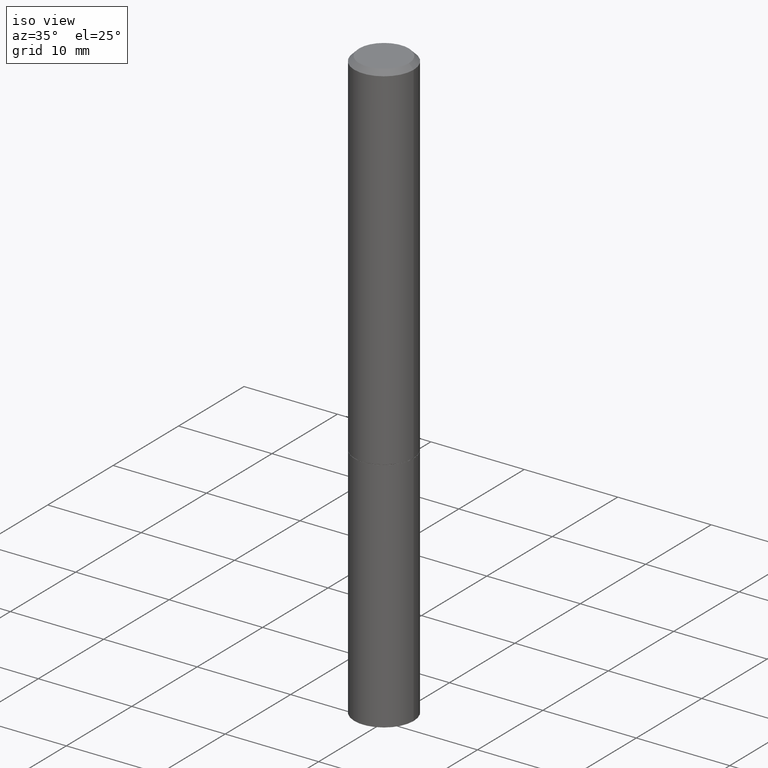
[diagram: clean part render]
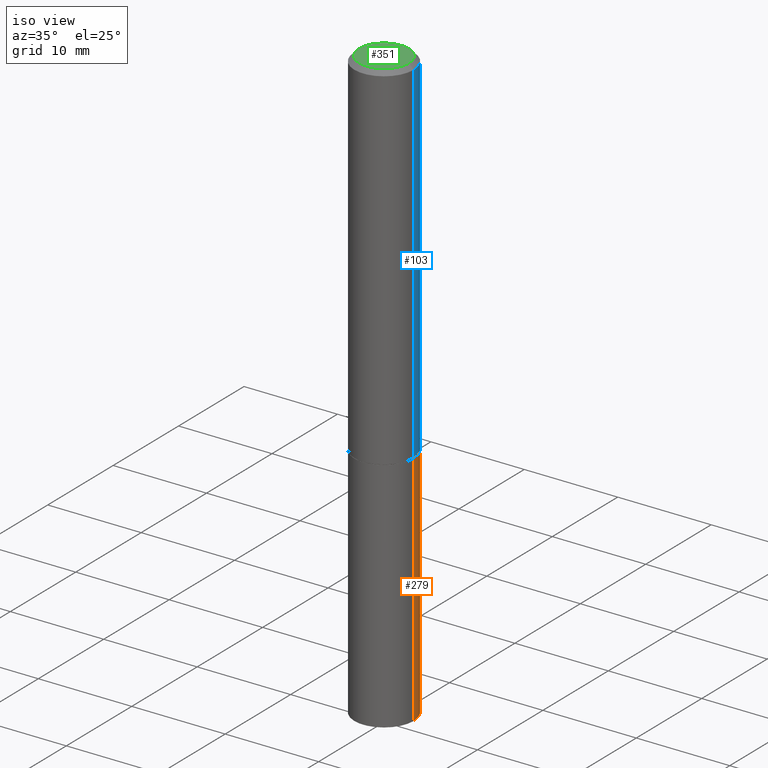
[diagram: same view with three faces highlighted in distinct colors, each labeled with its STEP entity id]
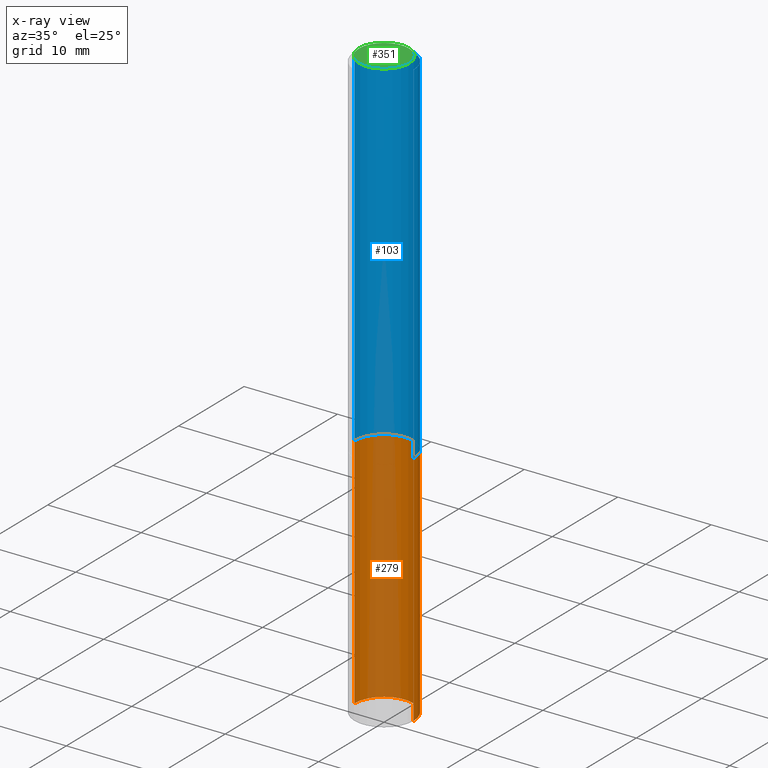
[diagram: x-ray of the same camera — body ghosted, the three highlighted faces saturated]
A machine part, iso view with three faces highlighted in distinct colors.
The next image is the same camera in x-ray (body ghosted, the three faces saturated) — at least one of them is partly hidden behind the body in this view.
Their STEP definitions:

[orange] entity #279 — the highlighted cylindrical surface (edge-blend (fillet) strip) has radius 3.175 mm, axis along (-0, 0, 1).
#7 = CYLINDRICAL_SURFACE ( 'NONE', #74, 0.1250000000000000000 ) ;
#9 = CARTESIAN_POINT ( 'NONE',  ( 6.113672015462842613E-29, -8.728703347107864943E-15, -2.500000000000000000 ) ) ;
#28 = CIRCLE ( 'NONE', #240, 0.1250000000000000000 ) ;
#32 = LINE ( 'NONE', #265, #310 ) ;
#36 = DIRECTION ( 'NONE',  ( 1.000000000000000000, -6.982962677686270655E-15, 0.000000000000000000 ) ) ;
#38 = DIRECTION ( 'NONE',  ( 1.000000000000000000, -6.982962677686262766E-15, 0.000000000000000000 ) ) ;
#40 = CARTESIAN_POINT ( 'NONE',  ( 0.1250000000000000000, -6.110092342975501516E-15, -1.500000000000000222 ) ) ;
#44 = EDGE_CURVE ( 'NONE', #332, #244, #285, .T. ) ;
#52 = CIRCLE ( 'NONE', #166, 0.1250000000000000000 ) ;
#54 = ORIENTED_EDGE ( 'NONE', *, *, #283, .F. ) ;
#66 = DIRECTION ( 'NONE',  ( 1.000000000000000000, -6.982962677686266711E-15, 4.876176775795935793E-29 ) ) ;
#73 = VERTEX_POINT ( 'NONE', #139 ) ;
#74 = AXIS2_PLACEMENT_3D ( 'NONE', #202, #319, #66 ) ;
#85 = VECTOR ( 'NONE', #254, 39.37007874015748143 ) ;
#124 = DIRECTION ( 'NONE',  ( -2.445468806185136597E-29, 3.491481338843145583E-15, 1.000000000000000000 ) ) ;
#139 = CARTESIAN_POINT ( 'NONE',  ( -0.1250000000000000000, -6.094784257986165933E-15, -1.500000000000000222 ) ) ;
#145 = FACE_OUTER_BOUND ( 'NONE', #168, .T. ) ;
#152 = CARTESIAN_POINT ( 'NONE',  ( 0.1250000000000000000, -9.601573681818648281E-15, -2.500000000000000000 ) ) ;
#153 = ORIENTED_EDGE ( 'NONE', *, *, #260, .T. ) ;
#154 = CARTESIAN_POINT ( 'NONE',  ( -0.1250000000000000000, -6.094784257986165933E-15, -2.500000000000000000 ) ) ;
#159 = ORIENTED_EDGE ( 'NONE', *, *, #251, .T. ) ;
#163 = CARTESIAN_POINT ( 'NONE',  ( 0.1250000000000000000, -8.728703347107833388E-16, 6.095220969744919741E-30 ) ) ;
#166 = AXIS2_PLACEMENT_3D ( 'NONE', #241, #295, #38 ) ;
#168 = EDGE_LOOP ( 'NONE', ( #153, #159, #54, #362 ) ) ;
#202 = CARTESIAN_POINT ( 'NONE',  ( 0.000000000000000000, 0.000000000000000000, 0.000000000000000000 ) ) ;
#240 = AXIS2_PLACEMENT_3D ( 'NONE', #9, #124, #36 ) ;
#241 = CARTESIAN_POINT ( 'NONE',  ( 3.668203209277704895E-29, -5.237222008264718177E-15, -1.500000000000000222 ) ) ;
#244 = VERTEX_POINT ( 'NONE', #40 ) ;
#251 = EDGE_CURVE ( 'NONE', #313, #73, #32, .T. ) ;
#254 = DIRECTION ( 'NONE',  ( -2.445468806185136877E-29, 3.491481338843145188E-15, 1.000000000000000000 ) ) ;
#260 = EDGE_CURVE ( 'NONE', #332, #313, #28, .T. ) ;
#265 = CARTESIAN_POINT ( 'NONE',  ( -0.1250000000000000000, 8.881784197001252323E-16, -6.148668862818632227E-30 ) ) ;
#279 = ADVANCED_FACE ( 'NONE', ( #145 ), #7, .T. ) ;
#283 = EDGE_CURVE ( 'NONE', #244, #73, #52, .T. ) ;
#285 = LINE ( 'NONE', #163, #85 ) ;
#295 = DIRECTION ( 'NONE',  ( -2.445468806185136597E-29, 3.491481338843145583E-15, 1.000000000000000000 ) ) ;
#310 = VECTOR ( 'NONE', #342, 39.37007874015748143 ) ;
#313 = VERTEX_POINT ( 'NONE', #154 ) ;
#319 = DIRECTION ( 'NONE',  ( -2.445468806185136597E-29, 3.491481338843145583E-15, 1.000000000000000000 ) ) ;
#332 = VERTEX_POINT ( 'NONE', #152 ) ;
#342 = DIRECTION ( 'NONE',  ( -2.445468806185136877E-29, 3.491481338843145188E-15, 1.000000000000000000 ) ) ;
#362 = ORIENTED_EDGE ( 'NONE', *, *, #44, .F. ) ;

[blue] entity #103 — the highlighted cylindrical surface (edge-blend (fillet) strip) has radius 3.175 mm, axis along (-0, 0, 1).
#1 = CARTESIAN_POINT ( 'NONE',  ( 3.665757740471519853E-29, -5.233730526925875958E-15, -1.499000000000000110 ) ) ;
#13 = EDGE_CURVE ( 'NONE', #365, #132, #312, .T. ) ;
#21 = CIRCLE ( 'NONE', #232, 0.1250000000000000000 ) ;
#26 = DIRECTION ( 'NONE',  ( -2.445468806185136877E-29, 3.491481338843145188E-15, 1.000000000000000000 ) ) ;
#56 = CARTESIAN_POINT ( 'NONE',  ( -0.1249999999999999029, 8.881784197001245421E-16, -6.148668862818627323E-30 ) ) ;
#59 = DIRECTION ( 'NONE',  ( -2.445468806185136597E-29, 3.491481338843145583E-15, 1.000000000000000000 ) ) ;
#76 = EDGE_CURVE ( 'NONE', #259, #365, #21, .T. ) ;
#84 = FACE_OUTER_BOUND ( 'NONE', #256, .T. ) ;
#86 = CIRCLE ( 'NONE', #233, 0.1249999999999998057 ) ;
#88 = CARTESIAN_POINT ( 'NONE',  ( -0.1249999999999998057, 8.030407079339189559E-16, -0.02000000000000004552 ) ) ;
#100 = VECTOR ( 'NONE', #292, 39.37007874015748143 ) ;
#103 = ADVANCED_FACE ( 'NONE', ( #84 ), #196, .T. ) ;
#125 = EDGE_CURVE ( 'NONE', #259, #280, #290, .T. ) ;
#131 = DIRECTION ( 'NONE',  ( 1.000000000000000000, -6.982962677686267499E-15, 0.000000000000000000 ) ) ;
#132 = VERTEX_POINT ( 'NONE', #88 ) ;
#133 = DIRECTION ( 'NONE',  ( 1.000000000000000000, -6.982962677686266711E-15, 4.876176775795935793E-29 ) ) ;
#137 = ORIENTED_EDGE ( 'NONE', *, *, #76, .T. ) ;
#155 = DIRECTION ( 'NONE',  ( -2.445468806185136597E-29, 3.491481338843145583E-15, 1.000000000000000000 ) ) ;
#175 = CARTESIAN_POINT ( 'NONE',  ( 0.1249999999999998057, -9.273918764983031658E-16, -0.02000000000000004552 ) ) ;
#195 = ORIENTED_EDGE ( 'NONE', *, *, #323, .F. ) ;
#196 = CYLINDRICAL_SURFACE ( 'NONE', #204, 0.1249999999999999029 ) ;
#204 = AXIS2_PLACEMENT_3D ( 'NONE', #315, #59, #133 ) ;
#212 = ORIENTED_EDGE ( 'NONE', *, *, #125, .F. ) ;
#231 = CARTESIAN_POINT ( 'NONE',  ( 0.1250000000000000000, -6.106600861636658508E-15, -1.499000000000000110 ) ) ;
#232 = AXIS2_PLACEMENT_3D ( 'NONE', #1, #337, #363 ) ;
#233 = AXIS2_PLACEMENT_3D ( 'NONE', #303, #155, #131 ) ;
#248 = ORIENTED_EDGE ( 'NONE', *, *, #13, .T. ) ;
#256 = EDGE_LOOP ( 'NONE', ( #137, #248, #195, #212 ) ) ;
#259 = VERTEX_POINT ( 'NONE', #231 ) ;
#280 = VERTEX_POINT ( 'NONE', #175 ) ;
#290 = LINE ( 'NONE', #345, #100 ) ;
#292 = DIRECTION ( 'NONE',  ( -2.445468806185136877E-29, 3.491481338843145188E-15, 1.000000000000000000 ) ) ;
#302 = CARTESIAN_POINT ( 'NONE',  ( -0.1250000000000000278, -1.763601657151242227E-15, -1.499000000000000110 ) ) ;
#303 = CARTESIAN_POINT ( 'NONE',  ( 4.890937612370284544E-31, -6.982962677686307633E-17, -0.02000000000000004552 ) ) ;
#312 = LINE ( 'NONE', #56, #333 ) ;
#315 = CARTESIAN_POINT ( 'NONE',  ( 0.000000000000000000, 0.000000000000000000, 0.000000000000000000 ) ) ;
#323 = EDGE_CURVE ( 'NONE', #280, #132, #86, .T. ) ;
#333 = VECTOR ( 'NONE', #26, 39.37007874015748143 ) ;
#337 = DIRECTION ( 'NONE',  ( -2.445468806185136597E-29, 3.491481338843145583E-15, 1.000000000000000000 ) ) ;
#345 = CARTESIAN_POINT ( 'NONE',  ( 0.1249999999999999029, -8.728703347107826486E-16, 6.095220969744914837E-30 ) ) ;
#363 = DIRECTION ( 'NONE',  ( 1.000000000000000000, -6.982962677686262766E-15, 0.000000000000000000 ) ) ;
#365 = VERTEX_POINT ( 'NONE', #302 ) ;

[green] entity #351 — the highlighted planar face has unit normal (0, -0, -1).
#3 = DIRECTION ( 'NONE',  ( -2.445468806185136597E-29, 3.491481338843145583E-15, 1.000000000000000000 ) ) ;
#5 = DIRECTION ( 'NONE',  ( 1.000000000000000000, -6.982962677686266711E-15, 4.876206205277401876E-29 ) ) ;
#17 = CIRCLE ( 'NONE', #225, 0.1049999999999998296 ) ;
#18 = DIRECTION ( 'NONE',  ( 2.438088387897960049E-29, -3.491481338843145188E-15, -1.000000000000000000 ) ) ;
#46 = ORIENTED_EDGE ( 'NONE', *, *, #366, .T. ) ;
#71 = DIRECTION ( 'NONE',  ( -2.445468806185136597E-29, 3.491481338843145583E-15, 1.000000000000000000 ) ) ;
#72 = FACE_OUTER_BOUND ( 'NONE', #183, .T. ) ;
#102 = CARTESIAN_POINT ( 'NONE',  ( 0.1049999999999998296, -8.238720831321564811E-16, -1.707404996039620013E-17 ) ) ;
#113 = EDGE_CURVE ( 'NONE', #331, #221, #217, .T. ) ;
#128 = DIRECTION ( 'NONE',  ( 1.000000000000000000, -6.982962677686266711E-15, 4.876206205277401876E-29 ) ) ;
#170 = CARTESIAN_POINT ( 'NONE',  ( -0.1049999999999998296, 7.681258945454878985E-16, -1.707404996040689597E-17 ) ) ;
#183 = EDGE_LOOP ( 'NONE', ( #46, #311 ) ) ;
#217 = CIRCLE ( 'NONE', #245, 0.1049999999999998296 ) ;
#221 = VERTEX_POINT ( 'NONE', #170 ) ;
#225 = AXIS2_PLACEMENT_3D ( 'NONE', #359, #71, #128 ) ;
#245 = AXIS2_PLACEMENT_3D ( 'NONE', #271, #3, #5 ) ;
#250 = DIRECTION ( 'NONE',  ( -1.000000000000000000, 6.982962677686265922E-15, -4.876176775795935793E-29 ) ) ;
#271 = CARTESIAN_POINT ( 'NONE',  ( 4.175405657340879278E-46, -5.961372681521788801E-32, -1.707404996040164512E-17 ) ) ;
#277 = CARTESIAN_POINT ( 'NONE',  ( 7.332110811570568410E-16, 0.1049999999999998296, -3.751425655587305558E-16 ) ) ;
#281 = AXIS2_PLACEMENT_3D ( 'NONE', #277, #18, #250 ) ;
#300 = PLANE ( 'NONE',  #281 ) ;
#311 = ORIENTED_EDGE ( 'NONE', *, *, #113, .T. ) ;
#331 = VERTEX_POINT ( 'NONE', #102 ) ;
#351 = ADVANCED_FACE ( 'NONE', ( #72 ), #300, .F. ) ;
#359 = CARTESIAN_POINT ( 'NONE',  ( 4.175405657340879278E-46, -5.961372681521788801E-32, -1.707404996040164512E-17 ) ) ;
#366 = EDGE_CURVE ( 'NONE', #221, #331, #17, .T. ) ;